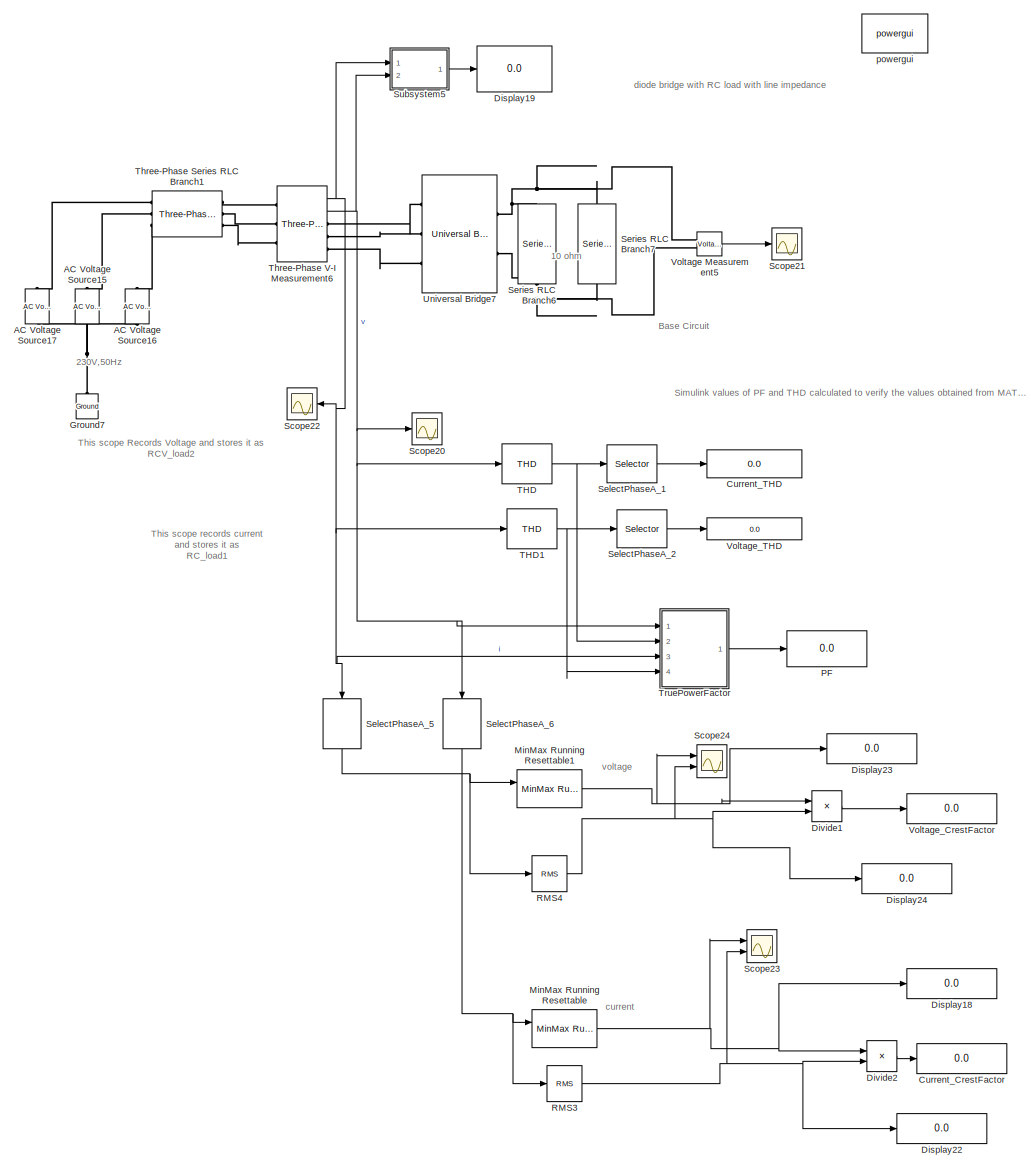
[diagram: root canvas - part 1/1, most of the canvas]
MODEL slx_4ee622a1472b
KIND model
CONFIG AbsTol = auto
CONFIG EnableMultiTasking = off
CONFIG FixedStep = auto
CONFIG MaxStep = 5e-5
CONFIG MinStep = auto
CONFIG PreLoadFcn = a=0
CONFIG RelTol = 1e-3
CONFIG SampleTimeConstraint = Unconstrained
CONFIG SolverName = ode23tb
CONFIG StartTime = 0.0
CONFIG StopTime = 0.1
BLOCK [Reference] AC Voltage Source15  REF=powerlib/Electrical
Sources/AC Voltage Source
  NameLocation = right
  Ports = [0, 0, 0, 0, 0, 1, 1]
  SourceBlock = powerlib/Electrical\nSources/AC Voltage Source
  SourceProductBaseCode = PS
  SourceType = AC Voltage Source
BLOCK [Reference] AC Voltage Source16  REF=powerlib/Electrical
Sources/AC Voltage Source
  NameLocation = right
  Ports = [0, 0, 0, 0, 0, 1, 1]
  SourceBlock = powerlib/Electrical\nSources/AC Voltage Source
  SourceProductBaseCode = PS
  SourceType = AC Voltage Source
BLOCK [Reference] AC Voltage Source17  REF=powerlib/Electrical
Sources/AC Voltage Source
  NameLocation = left
  Ports = [0, 0, 0, 0, 0, 1, 1]
  SourceBlock = powerlib/Electrical\nSources/AC Voltage Source
  SourceProductBaseCode = PS
  SourceType = AC Voltage Source
BLOCK [Display] Current_CrestFactor
  Decimation = 1
  Ports = [1]
BLOCK [Display] Current_THD
  Decimation = 1
  Ports = [1]
BLOCK [Display] Display18
  Decimation = 1
  Ports = [1]
BLOCK [Display] Display19
  Commented = on
  Decimation = 1
  Ports = [1]
BLOCK [Display] Display22
  Decimation = 1
  Ports = [1]
BLOCK [Display] Display23
  Decimation = 1
  Ports = [1]
BLOCK [Display] Display24
  Decimation = 1
  Ports = [1]
BLOCK [Product] Divide1
  Inputs = */
  Ports = [2, 1]
BLOCK [Product] Divide2
  Inputs = */
  Ports = [2, 1]
BLOCK [Reference] Ground7  REF=powerlib/Elements/Ground
  NameLocation = right
  Ports = [0, 0, 0, 0, 0, 1]
  SourceBlock = powerlib/Elements/Ground
  SourceProductBaseCode = PS
  SourceType = Ground
BLOCK [Reference] MinMax Running Resettable  REF=simulink/Math
Operations/MinMax
Running
Resettable
  Ports = [2, 1]
  SourceBlock = simulink/Math\nOperations/MinMax\nRunning\nResettable
  SourceProductBaseCode = SL
  SourceType = MinMax Running Resettable
BLOCK [Reference] MinMax Running Resettable1  REF=simulink/Math
Operations/MinMax
Running
Resettable
  Ports = [2, 1]
  SourceBlock = simulink/Math\nOperations/MinMax\nRunning\nResettable
  SourceProductBaseCode = SL
  SourceType = MinMax Running Resettable
BLOCK [Display] PF
  Decimation = 1
  Ports = [1]
BLOCK [Reference] RMS3  REF=powerlib_meascontrol/Measurements/RMS
  Ports = [1, 1]
  SourceBlock = powerlib_meascontrol/Measurements/RMS
  SourceProductBaseCode = PS
  SourceType = RMS
BLOCK [Reference] RMS4  REF=powerlib_meascontrol/Measurements/RMS
  Ports = [1, 1]
  SourceBlock = powerlib_meascontrol/Measurements/RMS
  SourceProductBaseCode = PS
  SourceType = RMS
BLOCK [Scope] Scope20
  Floating = off
  NumInputPorts = 1
  Ports = [1]
  ScopeSpecificationString = Simulink.scopes.TimeScopeBlockCfg('CurrentConfiguration', extmgr.ConfigurationSet(extmgr.Configuration('Core','General UI',true),extmgr.Configuration('Core','Source UI',true),extmgr.Configuration('Sources','WiredSimulink',true,'DataLoggingVariableName','RC_load1','DataLogging',true,'DataLoggingSaveFormat','Array'),extmgr.Configuration('Visuals','Time Domain',true,'SerializedDisplays',{struct('MinY...<+1539ch>
BLOCK [Scope] Scope21
  Floating = off
  NumInputPorts = 1
  Ports = [1]
  ScopeSpecificationString = Simulink.scopes.TimeScopeBlockCfg('CurrentConfiguration', extmgr.ConfigurationSet(extmgr.Configuration('Core','General UI',true),extmgr.Configuration('Core','Source UI',true),extmgr.Configuration('Sources','WiredSimulink',true,'DataLoggingVariableName','ScopeData1','DataLoggingLimitDataPoints',true,'DataLoggingSaveFormat','Array','DataLoggingDecimation','1','DataLoggingDecimateData',true),extmgr.C...<+1537ch>
BLOCK [Scope] Scope22
  Floating = off
  NameLocation = top
  NumInputPorts = 1
  Ports = [1]
  ScopeSpecificationString = Simulink.scopes.TimeScopeBlockCfg('CurrentConfiguration', extmgr.ConfigurationSet(extmgr.Configuration('Core','General UI',true),extmgr.Configuration('Core','Source UI',true),extmgr.Configuration('Sources','WiredSimulink',true,'DataLoggingVariableName','RCV_load2','DataLogging',true,'DataLoggingSaveFormat','Array'),extmgr.Configuration('Visuals','Time Domain',true,'SerializedDisplays',{struct('Min...<+1423ch>
BLOCK [Scope] Scope23
  Floating = off
  NumInputPorts = 2
  Ports = [2]
  ScopeSpecificationString = Simulink.scopes.TimeScopeBlockCfg('CurrentConfiguration', extmgr.ConfigurationSet(extmgr.Configuration('Core','General UI',true),extmgr.Configuration('Core','Source UI',true),extmgr.Configuration('Sources','WiredSimulink',true,'DataLoggingVariableName','ScopeData1'),extmgr.Configuration('Visuals','Time Domain',true,'SerializedDisplays',{struct('MinYLimReal','-30.94975','MaxYLimReal','278.54772','Y...<+2047ch>
BLOCK [Scope] Scope24
  Floating = off
  NumInputPorts = 2
  Ports = [2]
  ScopeSpecificationString = Simulink.scopes.TimeScopeBlockCfg('CurrentConfiguration', extmgr.ConfigurationSet(extmgr.Configuration('Core','General UI',true),extmgr.Configuration('Core','Source UI',true),extmgr.Configuration('Sources','WiredSimulink',true,'DataLoggingVariableName','ScopeData2'),extmgr.Configuration('Visuals','Time Domain',true,'SerializedDisplays',{struct('MinYLimReal','-30.94975','MaxYLimReal','278.54772','Y...<+2047ch>
BLOCK [Selector] SelectPhaseA_1
  IndexOptions = Index vector (dialog)
  Indices = 1
  InputPortWidth = 3
  OutputSizes = 1
  Ports = [1, 1]
BLOCK [Selector] SelectPhaseA_2
  IndexOptions = Index vector (dialog)
  Indices = 1
  InputPortWidth = 3
  OutputSizes = 1
  Ports = [1, 1]
BLOCK [Selector] SelectPhaseA_5
  IndexOptions = Index vector (dialog)
  Indices = 1
  InputPortWidth = 3
  NameLocation = left
  OutputSizes = 1
  Ports = [1, 1]
BLOCK [Selector] SelectPhaseA_6
  IndexOptions = Index vector (dialog)
  Indices = 1
  InputPortWidth = 3
  NameLocation = left
  OutputSizes = 1
  Ports = [1, 1]
BLOCK [Reference] Series RLC Branch6  REF=powerlib/Elements/Series RLC Branch
  NameLocation = right
  Ports = [0, 0, 0, 0, 0, 1, 1]
  SourceBlock = powerlib/Elements/Series RLC Branch
  SourceProductBaseCode = PS
  SourceType = Series RLC Branch
BLOCK [Reference] Series RLC Branch7  REF=powerlib/Elements/Series RLC Branch
  NameLocation = right
  Ports = [0, 0, 0, 0, 0, 1, 1]
  SourceBlock = powerlib/Elements/Series RLC Branch
  SourceProductBaseCode = PS
  SourceType = Series RLC Branch
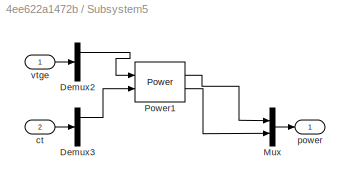
BLOCK [SubSystem] Subsystem5
  Commented = on
  Ports = [2, 1]
  RequestExecContextInheritance = off
BLOCK [Demux] Subsystem5/Demux2
  Outputs = 3
  Ports = [1, 3]
BLOCK [Demux] Subsystem5/Demux3
  Outputs = 3
  Ports = [1, 3]
BLOCK [Mux] Subsystem5/Mux
  DisplayOption = bar
  Inputs = 2
  Ports = [2, 1]
BLOCK [Reference] Subsystem5/Power1  REF=powerlib_meascontrol/Measurements/Power
  Ports = [2, 2]
  SourceBlock = powerlib_meascontrol/Measurements/Power
  SourceProductBaseCode = PS
  SourceType = Power
BLOCK [Inport] Subsystem5/ct
  Port = 2
BLOCK [Outport] Subsystem5/power
BLOCK [Inport] Subsystem5/vtge
BLOCK [Reference] THD  REF=powerlib_meascontrol/Measurements/THD
  Ports = [1, 1]
  SourceBlock = powerlib_meascontrol/Measurements/THD
  SourceProductBaseCode = PS
  SourceType = THD
BLOCK [Reference] THD1  REF=powerlib_meascontrol/Measurements/THD
  Ports = [1, 1]
  SourceBlock = powerlib_meascontrol/Measurements/THD
  SourceProductBaseCode = PS
  SourceType = THD
BLOCK [Reference] Three-Phase Series RLC Branch1  REF=powerlib/Elements/Three-Phase
Series RLC Branch
  AttributesFormatString = \n
  Ports = [0, 0, 0, 0, 0, 3, 3]
  SourceBlock = powerlib/Elements/Three-Phase\nSeries RLC Branch
  SourceProductBaseCode = PS
  SourceType = Three-Phase Series RLC Branch
BLOCK [Reference] Three-Phase V-I Measurement6  REF=powerlib/Measurements/Three-Phase
V-I Measurement
  Ports = [0, 2, 0, 0, 0, 3, 3]
  SourceBlock = powerlib/Measurements/Three-Phase\nV-I Measurement
  SourceProductBaseCode = PS
  SourceType = Three-Phase VI Measurement
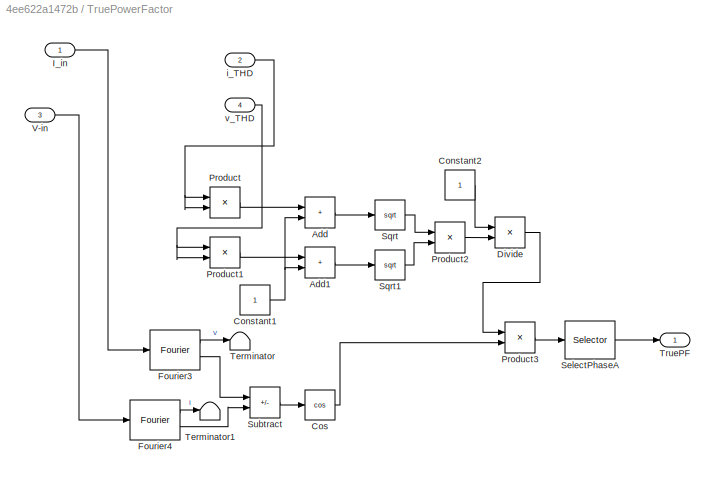
BLOCK [SubSystem] TruePowerFactor
  Ports = [4, 1]
  RequestExecContextInheritance = off
BLOCK [Sum] TruePowerFactor/Add
  IconShape = rectangular
  Ports = [2, 1]
BLOCK [Sum] TruePowerFactor/Add1
  IconShape = rectangular
  Ports = [2, 1]
BLOCK [Constant] TruePowerFactor/Constant1
BLOCK [Constant] TruePowerFactor/Constant2
BLOCK [Trigonometry] TruePowerFactor/Cos
  Operator = cos
  Ports = [1, 1]
BLOCK [Product] TruePowerFactor/Divide
  Inputs = */
  Ports = [2, 1]
BLOCK [Reference] TruePowerFactor/Fourier3  REF=powerlib_meascontrol/Measurements/Fourier
  Ports = [1, 2]
  SourceBlock = powerlib_meascontrol/Measurements/Fourier
  SourceProductBaseCode = PS
  SourceType = Fourier
BLOCK [Reference] TruePowerFactor/Fourier4  REF=powerlib_meascontrol/Measurements/Fourier
  Ports = [1, 2]
  SourceBlock = powerlib_meascontrol/Measurements/Fourier
  SourceProductBaseCode = PS
  SourceType = Fourier
BLOCK [Inport] TruePowerFactor/I_in
BLOCK [Product] TruePowerFactor/Product
  Ports = [2, 1]
BLOCK [Product] TruePowerFactor/Product1
  Ports = [2, 1]
BLOCK [Product] TruePowerFactor/Product2
  Ports = [2, 1]
BLOCK [Product] TruePowerFactor/Product3
  Ports = [2, 1]
BLOCK [Selector] TruePowerFactor/SelectPhaseA
  IndexOptions = Index vector (dialog)
  Indices = 1
  InputPortWidth = 3
  OutputSizes = 1
  Ports = [1, 1]
BLOCK [Sqrt] TruePowerFactor/Sqrt
BLOCK [Sqrt] TruePowerFactor/Sqrt1
BLOCK [Sum] TruePowerFactor/Subtract
  IconShape = rectangular
  Inputs = -+
  Ports = [2, 1]
BLOCK [Terminator] TruePowerFactor/Terminator
BLOCK [Terminator] TruePowerFactor/Terminator1
BLOCK [Outport] TruePowerFactor/TruePF
BLOCK [Inport] TruePowerFactor/V-in
  Port = 3
BLOCK [Inport] TruePowerFactor/i_THD
  Port = 2
BLOCK [Inport] TruePowerFactor/v_THD
  Port = 4
BLOCK [Reference] Universal Bridge7  REF=powerlib/Power
Electronics/Universal Bridge
  Ports = [0, 0, 0, 0, 0, 3, 2]
  SourceBlock = powerlib/Power\nElectronics/Universal Bridge
  SourceProductBaseCode = PS
  SourceType = Universal Bridge
BLOCK [Reference] Voltage Measurement5  REF=powerlib/Measurements/Voltage Measurement
  Ports = [0, 1, 0, 0, 0, 2]
  SourceBlock = powerlib/Measurements/Voltage Measurement
  SourceProductBaseCode = PS
  SourceType = Voltage Measurement
  UserDataPersistent = on
BLOCK [Display] Voltage_CrestFactor
  Decimation = 1
  Ports = [1]
BLOCK [Display] Voltage_THD
  Decimation = 1
  Ports = [1]
BLOCK [Reference] powergui  REF=powerlib/powergui
  Ports = []
  Priority = 1
  SourceBlock = powerlib/powergui
  SourceProductBaseCode = PS
  SourceType = PSB option menu block
ANNOTATION (root): 10 ohm
ANNOTATION (root): 230V,50Hz
ANNOTATION (root): diode bridge with RC load with line impedance
ANNOTATION (root): Base Circuit
ANNOTATION (root): Simulink values of PF and THD calculated to verify the values obtained from MATLAB CODE
ANNOTATION (root): This scope Records Voltage and stores it as RCV_load2
ANNOTATION (root): This scope records current and stores it as RC_load1
ANNOTATION (root): current
ANNOTATION (root): voltage
LINE Divide1:1 -> Voltage_CrestFactor:1
LINE Divide2:1 -> Current_CrestFactor:1
NET MinMax Running Resettable1:1 -> Display23:1, Divide1:1, Scope24:1
NET MinMax Running Resettable:1 -> Display18:1, Divide2:1, Scope23:1
NET RMS3:1 -> Display22:1, Divide2:2, Scope23:2
NET RMS4:1 -> Display24:1, Divide1:2, Scope24:2
LINE SelectPhaseA_1:1 -> Current_THD:1
LINE SelectPhaseA_2:1 -> Voltage_THD:1
NET SelectPhaseA_5:1 -> MinMax Running Resettable1:1, RMS4:1
NET SelectPhaseA_6:1 -> MinMax Running Resettable:1, RMS3:1
LINE Subsystem5/Demux2:1 -> Subsystem5/Power1:1
LINE Subsystem5/Demux3:1 -> Subsystem5/Power1:2
LINE Subsystem5/Mux:1 -> Subsystem5/power:1
LINE Subsystem5/Power1:1 -> Subsystem5/Mux:1
LINE Subsystem5/Power1:2 -> Subsystem5/Mux:2
LINE Subsystem5/ct:1 -> Subsystem5/Demux3:1
LINE Subsystem5/vtge:1 -> Subsystem5/Demux2:1
LINE Subsystem5:1 -> Display19:1
NET THD1:1 -> SelectPhaseA_2:1, TruePowerFactor:4
NET THD:1 -> SelectPhaseA_1:1, TruePowerFactor:2
NET Three-Phase V-I Measurement6:1 -> Scope22:1, SelectPhaseA_5:1, Subsystem5:1, THD1:1, TruePowerFactor:3
NET Three-Phase V-I Measurement6:2 -> Scope20:1, SelectPhaseA_6:1, Subsystem5:2, THD:1, TruePowerFactor:1
LINE TruePowerFactor/Add1:1 -> TruePowerFactor/Sqrt1:1
LINE TruePowerFactor/Add:1 -> TruePowerFactor/Sqrt:1
NET TruePowerFactor/Constant1:1 -> TruePowerFactor/Add1:2, TruePowerFactor/Add:2
LINE TruePowerFactor/Constant2:1 -> TruePowerFactor/Divide:1
LINE TruePowerFactor/Cos:1 -> TruePowerFactor/Product3:2
LINE TruePowerFactor/Divide:1 -> TruePowerFactor/Product3:1
LINE TruePowerFactor/Fourier3:1 -> TruePowerFactor/Terminator:1
LINE TruePowerFactor/Fourier3:2 -> TruePowerFactor/Subtract:1
LINE TruePowerFactor/Fourier4:1 -> TruePowerFactor/Terminator1:1
LINE TruePowerFactor/Fourier4:2 -> TruePowerFactor/Subtract:2
LINE TruePowerFactor/I_in:1 -> TruePowerFactor/Fourier3:1
LINE TruePowerFactor/Product1:1 -> TruePowerFactor/Add1:1
LINE TruePowerFactor/Product2:1 -> TruePowerFactor/Divide:2
LINE TruePowerFactor/Product3:1 -> TruePowerFactor/SelectPhaseA:1
LINE TruePowerFactor/Product:1 -> TruePowerFactor/Add:1
LINE TruePowerFactor/SelectPhaseA:1 -> TruePowerFactor/TruePF:1
LINE TruePowerFactor/Sqrt1:1 -> TruePowerFactor/Product2:2
LINE TruePowerFactor/Sqrt:1 -> TruePowerFactor/Product2:1
LINE TruePowerFactor/Subtract:1 -> TruePowerFactor/Cos:1
LINE TruePowerFactor/V-in:1 -> TruePowerFactor/Fourier4:1
NET TruePowerFactor/i_THD:1 -> TruePowerFactor/Product:1, TruePowerFactor/Product:2
NET TruePowerFactor/v_THD:1 -> TruePowerFactor/Product1:1, TruePowerFactor/Product1:2
LINE TruePowerFactor:1 -> PF:1
LINE Voltage Measurement5:1 -> Scope21:1
PNET net1: AC Voltage Source15:LConn1 -- AC Voltage Source16:LConn1 -- AC Voltage Source17:LConn1 -- Ground7:LConn1
PLINE AC Voltage Source15:RConn1 -- Three-Phase Series RLC Branch1:LConn2
PLINE AC Voltage Source16:RConn1 -- Three-Phase Series RLC Branch1:LConn3
PLINE AC Voltage Source17:RConn1 -- Three-Phase Series RLC Branch1:LConn1
PNET net2: Series RLC Branch6:LConn1 -- Series RLC Branch7:LConn1 -- Universal Bridge7:RConn1 -- Voltage Measurement5:LConn1
PNET net3: Series RLC Branch6:RConn1 -- Series RLC Branch7:RConn1 -- Universal Bridge7:RConn2 -- Voltage Measurement5:LConn2
PLINE Three-Phase Series RLC Branch1:RConn1 -- Three-Phase V-I Measurement6:LConn1
PLINE Three-Phase Series RLC Branch1:RConn2 -- Three-Phase V-I Measurement6:LConn2
PLINE Three-Phase Series RLC Branch1:RConn3 -- Three-Phase V-I Measurement6:LConn3
PLINE Three-Phase V-I Measurement6:RConn1 -- Universal Bridge7:LConn1
PLINE Three-Phase V-I Measurement6:RConn2 -- Universal Bridge7:LConn2
PLINE Three-Phase V-I Measurement6:RConn3 -- Universal Bridge7:LConn3
note: NET lines group one-source signal fan-out (src -> all destinations, sorted); 1:1 wires keep LINE; PNET lines group multi-terminal physical nets as a canonical sorted terminal list (undirected conserving connections); 2-terminal nets keep the pairwise PLINE form
